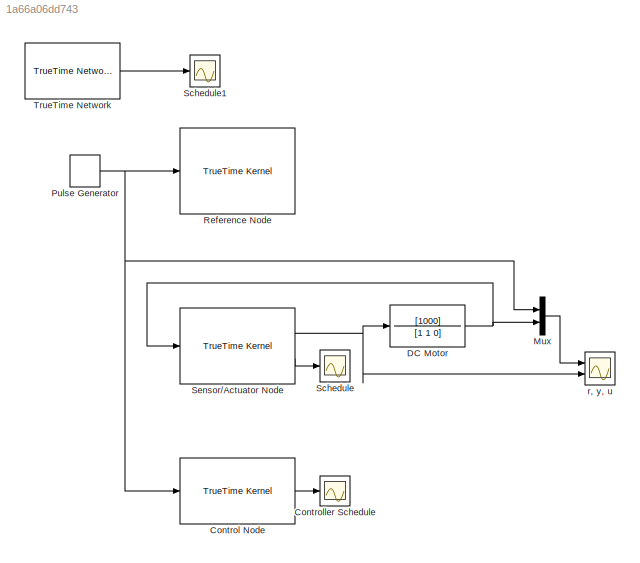
MODEL slx_1a66a06dd743
KIND model
CONFIG AbsTol = auto
CONFIG EnableMultiTasking = off
CONFIG FixedStep = auto
CONFIG MaxStep = auto
CONFIG MinStep = auto
CONFIG RelTol = 1e-3
CONFIG SampleTimeConstraint = Unconstrained
CONFIG Solver = VariableStepAuto
CONFIG SolverName = VariableStepAuto
CONFIG StartTime = 0.0
CONFIG StopTime = 1.0
BLOCK [Reference] Control Node   REF=truetime/TrueTime Kernel  (lib defined in slx_0362a698a4ec)
  Ports = [1, 1]
  SourceBlock = truetime/TrueTime Kernel
BLOCK [Scope] Controller Schedule
  Floating = off
  NumInputPorts = 1
  Ports = [1]
  ScopeSpecificationString = Simulink.scopes.TimeScopeBlockCfg('CurrentConfiguration', extmgr.ConfigurationSet(extmgr.Configuration('Core','General UI',true,'FigureColor',[0.156862745098039 0.156862745098039 0.156862745098039]),extmgr.Configuration('Core','Source UI',true),extmgr.Configuration('Sources','WiredSimulink',true,'DataLoggingVariableName','nschedule','DataLoggingSaveFormat','StructureWithTime','DataLoggingDecimatio...<+2753ch>
BLOCK [TransferFcn] DC Motor
  Denominator = [1 1 0]
  Numerator = [1000]
BLOCK [Mux] Mux
  DisplayOption = bar
  Inputs = 2
  Ports = [2, 1]
BLOCK [DiscretePulseGenerator] Pulse Generator 
  Amplitude = 2
  Period = 1
  PhaseDelay = 0.1
  Ports = [0, 1]
  PulseType = Time based
  PulseWidth = 50
BLOCK [Reference] Reference Node   REF=truetime/TrueTime Kernel  (lib defined in slx_0362a698a4ec)
  Ports = [1]
  SourceBlock = truetime/TrueTime Kernel
BLOCK [Scope] Schedule
  Floating = off
  NumInputPorts = 1
  Ports = [1]
  ScopeSpecificationString = Simulink.scopes.TimeScopeBlockCfg('CurrentConfiguration', extmgr.ConfigurationSet(extmgr.Configuration('Core','General UI',true),extmgr.Configuration('Core','Source UI',true),extmgr.Configuration('Sources','WiredSimulink',true,'DataLoggingVariableName','ScopeData1'),extmgr.Configuration('Visuals','Time Domain',true,'SerializedDisplays',{struct('MinYLimReal','0.8125','MaxYLimReal','2.6875','YLabelR...<+1771ch>
BLOCK [Scope] Schedule1
  Floating = off
  NumInputPorts = 1
  Ports = [1]
  ScopeSpecificationString = Simulink.scopes.TimeScopeBlockCfg('CurrentConfiguration', extmgr.ConfigurationSet(extmgr.Configuration('Core','General UI',true),extmgr.Configuration('Core','Source UI',true),extmgr.Configuration('Sources','WiredSimulink',true,'DataLoggingVariableName','ScopeData1'),extmgr.Configuration('Visuals','Time Domain',true,'SerializedDisplays',{struct('MinYLimReal','0.8125','MaxYLimReal','2.6875','YLabelR...<+1771ch>
BLOCK [Reference] Sensor//Actuator Node   REF=truetime/TrueTime Kernel  (lib defined in slx_0362a698a4ec)
  Ports = [1, 2]
  SourceBlock = truetime/TrueTime Kernel
BLOCK [Reference] TrueTime Network  REF=truetime/TrueTime Network  (lib defined in slx_0362a698a4ec)
  Ports = [0, 1]
  SourceBlock = truetime/TrueTime Network
  SourceType = Real-Time Network
BLOCK [Scope] r, y, u 
  Floating = off
  NumInputPorts = 2
  Ports = [2]
  ScopeSpecificationString = Simulink.scopes.TimeScopeBlockCfg('CurrentConfiguration', extmgr.ConfigurationSet(extmgr.Configuration('Core','General UI',true),extmgr.Configuration('Core','Source UI',true),extmgr.Configuration('Sources','WiredSimulink',true,'DataLoggingVariableName','ScopeData2'),extmgr.Configuration('Visuals','Time Domain',true,'SerializedDisplays',{struct('MinYLimReal','-1.00000','MaxYLimReal','1.00000','YLab...<+1440ch>
LINE Control Node :1 -> Controller Schedule:1
NET DC Motor:1 -> Mux:2, Sensor//Actuator Node :1
LINE Mux:1 -> r, y, u :1
NET Pulse Generator :1 -> Control Node :1, Mux:1, Reference Node :1
NET Sensor//Actuator Node :1 -> DC Motor:1, r, y, u :2
LINE Sensor//Actuator Node :2 -> Schedule:1
LINE TrueTime Network:1 -> Schedule1:1
note: NET lines group one-source signal fan-out (src -> all destinations, sorted); 1:1 wires keep LINE
